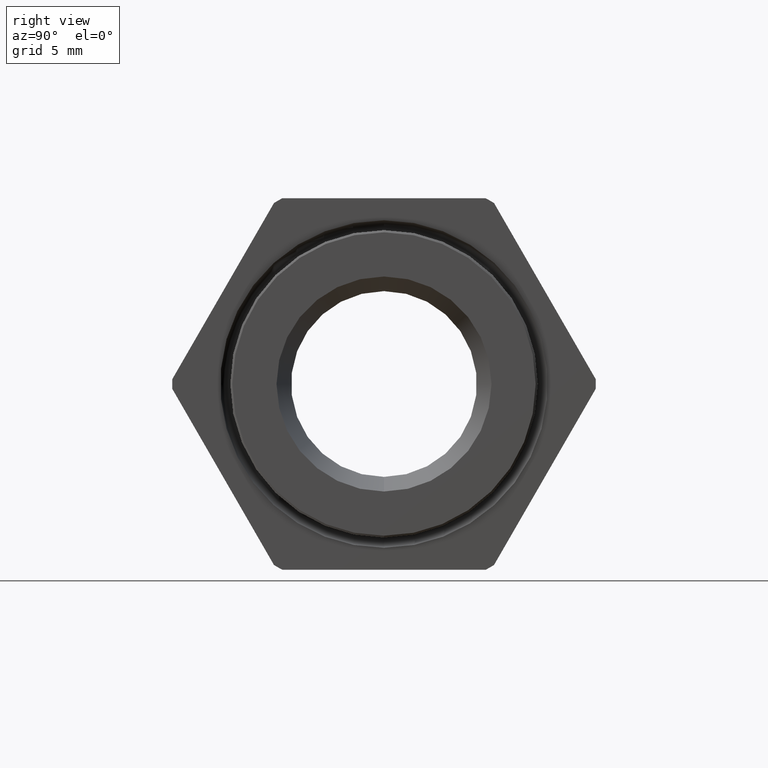
[diagram: clean part render]
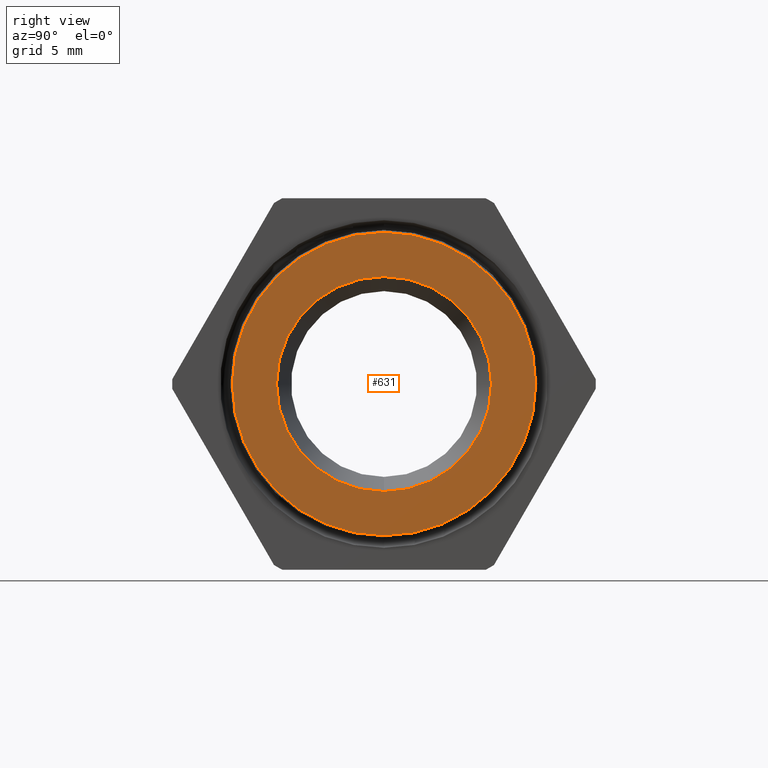
[diagram: same view with one face highlighted and labeled with its STEP entity id]
A machine part, right view. The second image highlights one B-rep face of the part: STEP entity #631.
In plain terms, the highlighted planar face has unit normal (-1, 0, 0).
Its self-contained STEP definition (entity closure, byte-faithful):
#418 = EDGE_CURVE ( 'NONE', #456, #498, #1775, .T. ) ;
#456 = VERTEX_POINT ( 'NONE', #1833 ) ;
#498 = VERTEX_POINT ( 'NONE', #1878 ) ;
#631 = ADVANCED_FACE ( 'NONE', ( #2100, #2099 ), #2097, .F. ) ;
#632 = EDGE_LOOP ( 'NONE', ( #633, #634 ) ) ;
#633 = ORIENTED_EDGE ( 'NONE', *, *, #418, .T. ) ;
#634 = ORIENTED_EDGE ( 'NONE', *, *, #635, .T. ) ;
#635 = EDGE_CURVE ( 'NONE', #498, #456, #2155, .T. ) ;
#636 = EDGE_LOOP ( 'NONE', ( #637, #639 ) ) ;
#637 = ORIENTED_EDGE ( 'NONE', *, *, #638, .F. ) ;
#638 = EDGE_CURVE ( 'NONE', #3630, #3487, #2151, .T. ) ;
#639 = ORIENTED_EDGE ( 'NONE', *, *, #3510, .F. ) ;
#1771 = DIRECTION ( 'NONE',  ( 0.0000000000000000000, 0.0000000000000000000, 1.000000000000000000 ) ) ;
#1772 = DIRECTION ( 'NONE',  ( -1.000000000000000000, 0.0000000000000000000, 0.0000000000000000000 ) ) ;
#1773 = CARTESIAN_POINT ( 'NONE',  ( 0.5899999999999999700, 0.0000000000000000000, 0.0000000000000000000 ) ) ;
#1774 = AXIS2_PLACEMENT_3D ( 'NONE', #1773, #1772, #1771 ) ;
#1775 = CIRCLE ( 'NONE', #1774, 0.2719808186435098700 ) ;
#1833 = CARTESIAN_POINT ( 'NONE',  ( 0.5899999999999999700, 0.0000000000000000000, -0.2719808186435098700 ) ) ;
#1878 = CARTESIAN_POINT ( 'NONE',  ( 0.5899999999999999700, 3.330804389812511500E-017, 0.2719808186435098700 ) ) ;
#2093 = DIRECTION ( 'NONE',  ( 0.0000000000000000000, 0.0000000000000000000, 1.000000000000000000 ) ) ;
#2094 = DIRECTION ( 'NONE',  ( -1.000000000000000000, 0.0000000000000000000, 0.0000000000000000000 ) ) ;
#2095 = CARTESIAN_POINT ( 'NONE',  ( 0.5899999999999999700, 0.3887153788233951300, 0.0000000000000000000 ) ) ;
#2096 = AXIS2_PLACEMENT_3D ( 'NONE', #2095, #2094, #2093 ) ;
#2097 = PLANE ( 'NONE',  #2096 ) ;
#2098 = CARTESIAN_POINT ( 'NONE',  ( 0.5899999999999999700, 0.0000000000000000000, 0.0000000000000000000 ) ) ;
#2099 = FACE_OUTER_BOUND ( 'NONE', #636, .T. ) ;
#2100 = FACE_BOUND ( 'NONE', #632, .T. ) ;
#2147 = DIRECTION ( 'NONE',  ( 0.0000000000000000000, 0.0000000000000000000, 1.000000000000000000 ) ) ;
#2148 = DIRECTION ( 'NONE',  ( -1.000000000000000000, 0.0000000000000000000, 0.0000000000000000000 ) ) ;
#2149 = CARTESIAN_POINT ( 'NONE',  ( 0.5899999999999999700, 0.0000000000000000000, 1.243131120897755100E-017 ) ) ;
#2150 = AXIS2_PLACEMENT_3D ( 'NONE', #2149, #2148, #2147 ) ;
#2151 = CIRCLE ( 'NONE', #2150, 0.3837188332679146700 ) ;
#2152 = DIRECTION ( 'NONE',  ( 0.0000000000000000000, 0.0000000000000000000, 1.000000000000000000 ) ) ;
#2153 = DIRECTION ( 'NONE',  ( -1.000000000000000000, 0.0000000000000000000, 0.0000000000000000000 ) ) ;
#2154 = AXIS2_PLACEMENT_3D ( 'NONE', #2098, #2153, #2152 ) ;
#2155 = CIRCLE ( 'NONE', #2154, 0.2719808186435098700 ) ;
#3111 = CARTESIAN_POINT ( 'NONE',  ( 0.5899999999999999700, 4.699200409341085800E-017, 0.3837188332679146700 ) ) ;
#3123 = DIRECTION ( 'NONE',  ( 0.0000000000000000000, 0.0000000000000000000, 1.000000000000000000 ) ) ;
#3124 = DIRECTION ( 'NONE',  ( -1.000000000000000000, 0.0000000000000000000, 0.0000000000000000000 ) ) ;
#3125 = CARTESIAN_POINT ( 'NONE',  ( 0.5899999999999999700, 0.0000000000000000000, 1.243131120897755100E-017 ) ) ;
#3126 = AXIS2_PLACEMENT_3D ( 'NONE', #3125, #3124, #3123 ) ;
#3127 = CIRCLE ( 'NONE', #3126, 0.3837188332679146700 ) ;
#3387 = CARTESIAN_POINT ( 'NONE',  ( 0.5899999999999999700, 0.0000000000000000000, -0.3837188332679146700 ) ) ;
#3487 = VERTEX_POINT ( 'NONE', #3111 ) ;
#3510 = EDGE_CURVE ( 'NONE', #3487, #3630, #3127, .T. ) ;
#3630 = VERTEX_POINT ( 'NONE', #3387 ) ;